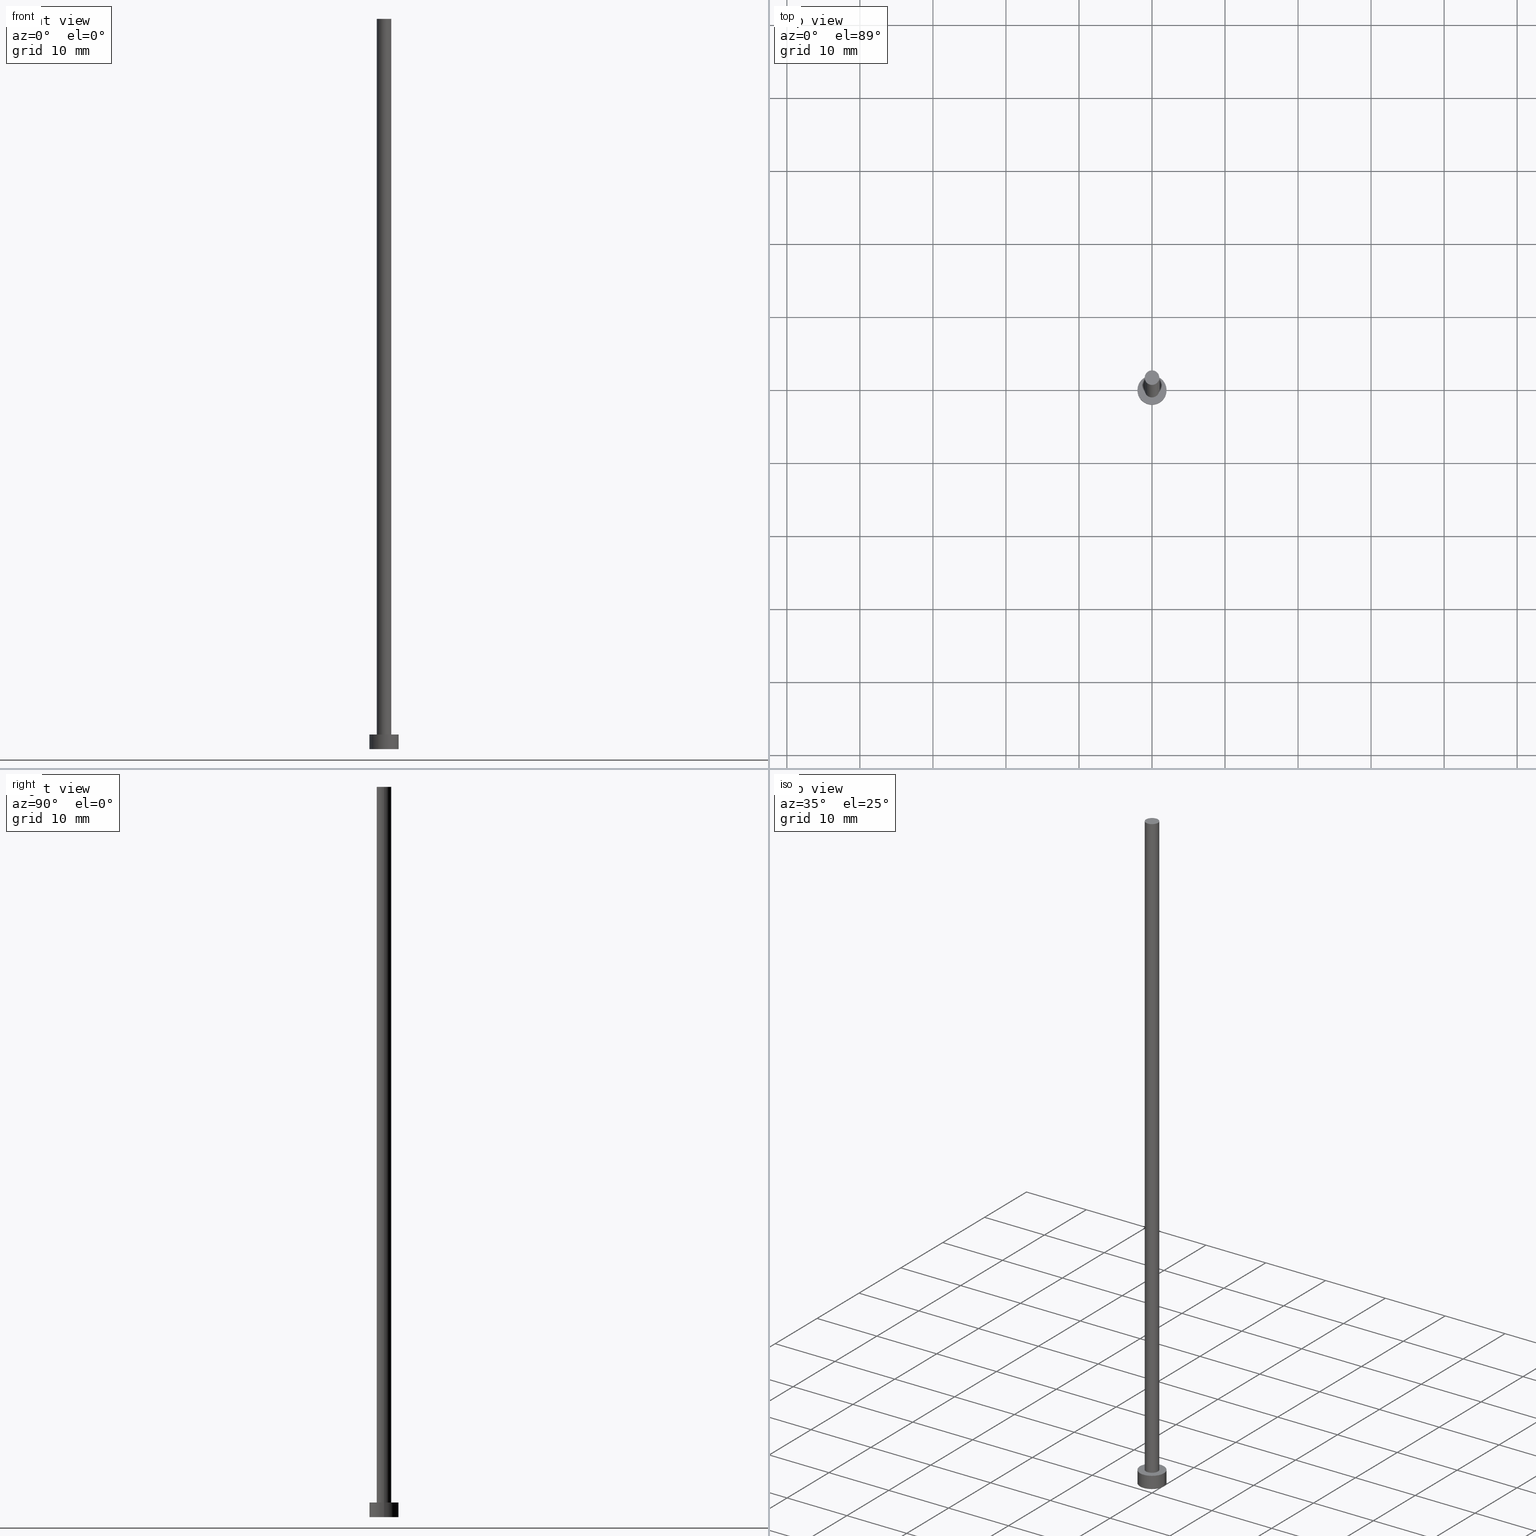
[diagram: canonical four-view strip — front | top / right | iso, engineering-drawing reading convention]
A machine part, canonical four-view strip (front | top / right | iso — engineering-drawing reading convention). The complete STEP part file that produces these views, byte-faithful:
ISO-10303-21;
HEADER;
FILE_DESCRIPTION (( 'STEP AP203' ),
    '1' );
FILE_NAME ('67bd.STEP',
    '2023-02-13T17:15:06',
    ( '' ),
    ( '' ),
    'SwSTEP 2.0',
    'SolidWorks 2019',
    '' );
FILE_SCHEMA (( 'CONFIG_CONTROL_DESIGN' ));
ENDSEC;

DATA;
#1 = DIRECTION ( 'NONE',  ( 0.000000000000000000, 0.000000000000000000, 1.000000000000000000 ) ) ;
#2 = DIRECTION ( 'NONE',  ( 0.000000000000000000, 0.000000000000000000, 1.000000000000000000 ) ) ;
#3 = EDGE_LOOP ( 'NONE', ( #61, #138 ) ) ;
#4 = CYLINDRICAL_SURFACE ( 'NONE', #77, 1.000000000000000000 ) ;
#5 = CALENDAR_DATE ( 2023, 13, 2 ) ;
#6 = DIRECTION ( 'NONE',  ( 1.000000000000000000, 0.000000000000000000, 0.000000000000000000 ) ) ;
#7 = CARTESIAN_POINT ( 'NONE',  ( 0.000000000000000000, 0.000000000000000000, 100.0000000000000000 ) ) ;
#8 = EDGE_LOOP ( 'NONE', ( #84, #35 ) ) ;
#9 = PERSON_AND_ORGANIZATION ( #157, #82 ) ;
#10 = DATE_TIME_ROLE ( 'classification_date' ) ;
#11 = DIRECTION ( 'NONE',  ( 1.000000000000000000, 0.000000000000000000, 0.000000000000000000 ) ) ;
#12 = ORIENTED_EDGE ( 'NONE', *, *, #196, .T. ) ;
#13 = DIRECTION ( 'NONE',  ( -0.000000000000000000, -0.000000000000000000, -1.000000000000000000 ) ) ;
#14 = CARTESIAN_POINT ( 'NONE',  ( 0.000000000000000000, 0.000000000000000000, 0.000000000000000000 ) ) ;
#15 = ADVANCED_FACE ( 'NONE', ( #41 ), #106, .T. ) ;
#16 = AXIS2_PLACEMENT_3D ( 'NONE', #99, #93, #240 ) ;
#17 = ORIENTED_EDGE ( 'NONE', *, *, #177, .F. ) ;
#18 = CC_DESIGN_DATE_AND_TIME_ASSIGNMENT ( #76, #10, ( #249 ) ) ;
#19 = ADVANCED_BREP_SHAPE_REPRESENTATION ( '67bd', ( #133, #89 ), #174 ) ;
#20 = PERSON_AND_ORGANIZATION_ROLE ( 'design_owner' ) ;
#21 = UNCERTAINTY_MEASURE_WITH_UNIT (LENGTH_MEASURE( 1.000000000000000082E-05 ), #197, 'distance_accuracy_value', 'NONE');
#22 = AXIS2_PLACEMENT_3D ( 'NONE', #63, #66, #108 ) ;
#23 = CARTESIAN_POINT ( 'NONE',  ( 0.000000000000000000, 0.000000000000000000, 2.000000000000000000 ) ) ;
#24 = CALENDAR_DATE ( 2023, 13, 2 ) ;
#25 = DIRECTION ( 'NONE',  ( 1.000000000000000000, 0.000000000000000000, 0.000000000000000000 ) ) ;
#26 = ORIENTED_EDGE ( 'NONE', *, *, #234, .F. ) ;
#27 = APPROVAL_PERSON_ORGANIZATION ( #69, #58, #116 ) ;
#28 = DATE_AND_TIME ( #45, #100 ) ;
#29 = FACE_OUTER_BOUND ( 'NONE', #206, .T. ) ;
#30 = CARTESIAN_POINT ( 'NONE',  ( -1.000000000000000000, 0.000000000000000000, 2.000000000000000000 ) ) ;
#31 = PERSON_AND_ORGANIZATION ( #157, #82 ) ;
#32 = LINE ( 'NONE', #188, #250 ) ;
#33 = DIRECTION ( 'NONE',  ( -0.000000000000000000, -0.000000000000000000, -1.000000000000000000 ) ) ;
#34 = VERTEX_POINT ( 'NONE', #94 ) ;
#35 = ORIENTED_EDGE ( 'NONE', *, *, #151, .T. ) ;
#36 = VERTEX_POINT ( 'NONE', #30 ) ;
#37 = CC_DESIGN_PERSON_AND_ORGANIZATION_ASSIGNMENT ( #194, #20, ( #201 ) ) ;
#38 = CIRCLE ( 'NONE', #124, 1.000000000000000000 ) ;
#39 = DIRECTION ( 'NONE',  ( 0.000000000000000000, 0.000000000000000000, 1.000000000000000000 ) ) ;
#40 = DIRECTION ( 'NONE',  ( -1.000000000000000000, 0.000000000000000000, 0.000000000000000000 ) ) ;
#41 = FACE_OUTER_BOUND ( 'NONE', #145, .T. ) ;
#42 = ORIENTED_EDGE ( 'NONE', *, *, #170, .T. ) ;
#43 = DIRECTION ( 'NONE',  ( -0.000000000000000000, -0.000000000000000000, -1.000000000000000000 ) ) ;
#44 = CARTESIAN_POINT ( 'NONE',  ( 1.000000000000000000, 1.224646799147353207E-16, 100.0000000000000000 ) ) ;
#45 = CALENDAR_DATE ( 2023, 13, 2 ) ;
#46 = CARTESIAN_POINT ( 'NONE',  ( 0.000000000000000000, 0.000000000000000000, 2.000000000000000000 ) ) ;
#47 = EDGE_CURVE ( 'NONE', #215, #166, #227, .T. ) ;
#48 = ORIENTED_EDGE ( 'NONE', *, *, #60, .T. ) ;
#49 = LINE ( 'NONE', #134, #67 ) ;
#50 = EDGE_LOOP ( 'NONE', ( #198, #221, #12, #122 ) ) ;
#51 = FACE_OUTER_BOUND ( 'NONE', #8, .T. ) ;
#52 = ADVANCED_FACE ( 'NONE', ( #243 ), #190, .T. ) ;
#53 = PERSON_AND_ORGANIZATION_ROLE ( 'creator' ) ;
#54 = DIRECTION ( 'NONE',  ( -0.000000000000000000, -0.000000000000000000, -1.000000000000000000 ) ) ;
#55 = CARTESIAN_POINT ( 'NONE',  ( 0.000000000000000000, 0.000000000000000000, 0.000000000000000000 ) ) ;
#56 = DIRECTION ( 'NONE',  ( 0.000000000000000000, 0.000000000000000000, 1.000000000000000000 ) ) ;
#57 = COORDINATED_UNIVERSAL_TIME_OFFSET ( 1, 0, .AHEAD. ) ;
#58 = APPROVAL ( #126, 'NEUR�EN�' ) ;
#59 = ORIENTED_EDGE ( 'NONE', *, *, #115, .T. ) ;
#60 = EDGE_CURVE ( 'NONE', #225, #210, #183, .T. ) ;
#61 = ORIENTED_EDGE ( 'NONE', *, *, #137, .F. ) ;
#62 = CLOSED_SHELL ( 'NONE', ( #52, #15, #214, #222, #209, #105, #64 ) ) ;
#63 = CARTESIAN_POINT ( 'NONE',  ( 0.000000000000000000, 0.000000000000000000, 2.000000000000000000 ) ) ;
#64 = ADVANCED_FACE ( 'NONE', ( #51 ), #147, .T. ) ;
#65 = CARTESIAN_POINT ( 'NONE',  ( 0.000000000000000000, 0.000000000000000000, 0.000000000000000000 ) ) ;
#66 = DIRECTION ( 'NONE',  ( 0.000000000000000000, 0.000000000000000000, 1.000000000000000000 ) ) ;
#67 = VECTOR ( 'NONE', #184, 1000.000000000000000 ) ;
#68 = VECTOR ( 'NONE', #75, 1000.000000000000000 ) ;
#69 = PERSON_AND_ORGANIZATION ( #157, #82 ) ;
#70 = CARTESIAN_POINT ( 'NONE',  ( 0.000000000000000000, 0.000000000000000000, 100.0000000000000000 ) ) ;
#71 = CARTESIAN_POINT ( 'NONE',  ( 2.000000000000000000, 2.449293598294706414E-16, 0.000000000000000000 ) ) ;
#72 = COORDINATED_UNIVERSAL_TIME_OFFSET ( 1, 0, .AHEAD. ) ;
#73 = EDGE_LOOP ( 'NONE', ( #146, #144, #245, #217 ) ) ;
#74 = DIRECTION ( 'NONE',  ( -1.000000000000000000, 0.000000000000000000, 0.000000000000000000 ) ) ;
#75 = DIRECTION ( 'NONE',  ( -0.000000000000000000, -0.000000000000000000, -1.000000000000000000 ) ) ;
#76 = DATE_AND_TIME ( #187, #142 ) ;
#77 = AXIS2_PLACEMENT_3D ( 'NONE', #153, #54, #136 ) ;
#78 = LOCAL_TIME ( 18, 15, 6.000000000000000000, #72 ) ;
#79 = MECHANICAL_CONTEXT ( 'NONE', #169, 'mechanical' ) ;
#80 = DIRECTION ( 'NONE',  ( 1.000000000000000000, 0.000000000000000000, -0.000000000000000000 ) ) ;
#81 = APPLICATION_CONTEXT ( 'configuration controlled 3d designs of mechanical parts and assemblies' ) ;
#82 = ORGANIZATION ( 'NEUR�EN�', 'NEUR�EN�', '' ) ;
#83 = DESIGN_CONTEXT ( 'detailed design', #81, 'design' ) ;
#84 = ORIENTED_EDGE ( 'NONE', *, *, #255, .T. ) ;
#85 = FACE_BOUND ( 'NONE', #3, .T. ) ;
#86 = LINE ( 'NONE', #159, #229 ) ;
#87 = DIRECTION ( 'NONE',  ( 1.000000000000000000, 0.000000000000000000, 0.000000000000000000 ) ) ;
#88 = EDGE_LOOP ( 'NONE', ( #26, #179, #59, #90 ) ) ;
#89 = AXIS2_PLACEMENT_3D ( 'NONE', #65, #251, #87 ) ;
#90 = ORIENTED_EDGE ( 'NONE', *, *, #177, .T. ) ;
#91 = DIRECTION ( 'NONE',  ( 1.000000000000000000, 0.000000000000000000, -0.000000000000000000 ) ) ;
#92 = SHAPE_DEFINITION_REPRESENTATION ( #162, #19 ) ;
#93 = DIRECTION ( 'NONE',  ( 0.000000000000000000, 0.000000000000000000, 1.000000000000000000 ) ) ;
#94 = CARTESIAN_POINT ( 'NONE',  ( -1.000000000000000000, 0.000000000000000000, 100.0000000000000000 ) ) ;
#95 = LOCAL_TIME ( 18, 15, 6.000000000000000000, #57 ) ;
#96 = PRODUCT_RELATED_PRODUCT_CATEGORY ( 'detail', '', ( #201 ) ) ;
#97 = AXIS2_PLACEMENT_3D ( 'NONE', #7, #13, #74 ) ;
#98 = PERSON_AND_ORGANIZATION ( #157, #82 ) ;
#99 = CARTESIAN_POINT ( 'NONE',  ( 0.000000000000000000, 0.000000000000000000, 2.000000000000000000 ) ) ;
#100 = LOCAL_TIME ( 18, 15, 6.000000000000000000, #242 ) ;
#101 = APPLICATION_PROTOCOL_DEFINITION ( 'international standard', 'config_control_design', 1994, #81 ) ;
#102 = CC_DESIGN_DATE_AND_TIME_ASSIGNMENT ( #28, #118, ( #199 ) ) ;
#103 = CC_DESIGN_PERSON_AND_ORGANIZATION_ASSIGNMENT ( #135, #181, ( #141 ) ) ;
#104 = AXIS2_PLACEMENT_3D ( 'NONE', #107, #1, #80 ) ;
#105 = ADVANCED_FACE ( 'NONE', ( #121 ), #4, .T. ) ;
#106 = CYLINDRICAL_SURFACE ( 'NONE', #200, 2.000000000000000000 ) ;
#107 = CARTESIAN_POINT ( 'NONE',  ( 0.000000000000000000, 0.000000000000000000, 2.000000000000000000 ) ) ;
#108 = DIRECTION ( 'NONE',  ( 1.000000000000000000, 0.000000000000000000, 0.000000000000000000 ) ) ;
#109 = DIRECTION ( 'NONE',  ( -0.000000000000000000, -0.000000000000000000, -1.000000000000000000 ) ) ;
#110 = DATE_AND_TIME ( #24, #95 ) ;
#111 = APPROVAL_PERSON_ORGANIZATION ( #98, #212, #152 ) ;
#112 = APPROVAL_DATE_TIME ( #185, #58 ) ;
#113 = CARTESIAN_POINT ( 'NONE',  ( 0.000000000000000000, 0.000000000000000000, 2.000000000000000000 ) ) ;
#114 = CIRCLE ( 'NONE', #16, 2.000000000000000000 ) ;
#115 = EDGE_CURVE ( 'NONE', #225, #248, #32, .T. ) ;
#116 = APPROVAL_ROLE ( '' ) ;
#117 = DIRECTION ( 'NONE',  ( 0.000000000000000000, 0.000000000000000000, 1.000000000000000000 ) ) ;
#118 = DATE_TIME_ROLE ( 'creation_date' ) ;
#119 = LOCAL_TIME ( 18, 15, 6.000000000000000000, #167 ) ;
#120 = PERSON_AND_ORGANIZATION_ROLE ( 'classification_officer' ) ;
#121 = FACE_OUTER_BOUND ( 'NONE', #50, .T. ) ;
#122 = ORIENTED_EDGE ( 'NONE', *, *, #137, .T. ) ;
#123 = APPROVAL ( #132, 'NEUR�EN�' ) ;
#124 = AXIS2_PLACEMENT_3D ( 'NONE', #202, #39, #25 ) ;
#125 = ORIENTED_EDGE ( 'NONE', *, *, #170, .F. ) ;
#126 = APPROVAL_STATUS ( 'not_yet_approved' ) ;
#127 = CARTESIAN_POINT ( 'NONE',  ( 0.000000000000000000, 0.000000000000000000, 100.0000000000000000 ) ) ;
#128 = DIRECTION ( 'NONE',  ( -0.000000000000000000, -0.000000000000000000, -1.000000000000000000 ) ) ;
#129 = CARTESIAN_POINT ( 'NONE',  ( 1.000000000000000000, 1.224646799147353207E-16, 2.000000000000000000 ) ) ;
#130 = CC_DESIGN_PERSON_AND_ORGANIZATION_ASSIGNMENT ( #31, #120, ( #249 ) ) ;
#131 = CC_DESIGN_PERSON_AND_ORGANIZATION_ASSIGNMENT ( #226, #205, ( #199 ) ) ;
#132 = APPROVAL_STATUS ( 'not_yet_approved' ) ;
#133 = MANIFOLD_SOLID_BREP ( 'P�idat vysunut�m3', #62 ) ;
#134 = CARTESIAN_POINT ( 'NONE',  ( -1.000000000000000000, 0.000000000000000000, 100.0000000000000000 ) ) ;
#135 = PERSON_AND_ORGANIZATION ( #157, #82 ) ;
#136 = DIRECTION ( 'NONE',  ( -1.000000000000000000, 0.000000000000000000, 0.000000000000000000 ) ) ;
#137 = EDGE_CURVE ( 'NONE', #36, #166, #155, .T. ) ;
#138 = ORIENTED_EDGE ( 'NONE', *, *, #253, .F. ) ;
#139 = ORIENTED_EDGE ( 'NONE', *, *, #140, .T. ) ;
#140 = EDGE_CURVE ( 'NONE', #210, #225, #114, .T. ) ;
#141 = PRODUCT_DEFINITION_FORMATION_WITH_SPECIFIED_SOURCE ( 'LIBOVOLN�', '', #201, .NOT_KNOWN. ) ;
#142 = LOCAL_TIME ( 18, 15, 6.000000000000000000, #203 ) ;
#143 = ORIENTED_EDGE ( 'NONE', *, *, #115, .F. ) ;
#144 = ORIENTED_EDGE ( 'NONE', *, *, #47, .T. ) ;
#145 = EDGE_LOOP ( 'NONE', ( #235, #233, #42, #143 ) ) ;
#146 = ORIENTED_EDGE ( 'NONE', *, *, #151, .F. ) ;
#147 = PLANE ( 'NONE',  #189 ) ;
#148 = DIRECTION ( 'NONE',  ( 1.000000000000000000, 0.000000000000000000, 0.000000000000000000 ) ) ;
#149 = CC_DESIGN_APPROVAL ( #58, ( #141 ) ) ;
#150 = CARTESIAN_POINT ( 'NONE',  ( 0.000000000000000000, 0.000000000000000000, 2.000000000000000000 ) ) ;
#151 = EDGE_CURVE ( 'NONE', #215, #34, #247, .T. ) ;
#152 = APPROVAL_ROLE ( '' ) ;
#153 = CARTESIAN_POINT ( 'NONE',  ( 0.000000000000000000, 0.000000000000000000, 100.0000000000000000 ) ) ;
#154 = CC_DESIGN_APPROVAL ( #212, ( #249 ) ) ;
#155 = CIRCLE ( 'NONE', #211, 1.000000000000000000 ) ;
#156 = AXIS2_PLACEMENT_3D ( 'NONE', #150, #56, #224 ) ;
#157 = PERSON ( 'NEUR�EN�', 'NEUR�EN�', 'NEUR�EN�', ('NEUR�EN�'), ('NEUR�EN�'), ('NEUR�EN�') ) ;
#158 = CARTESIAN_POINT ( 'NONE',  ( -2.000000000000000000, 0.000000000000000000, 2.000000000000000000 ) ) ;
#159 = CARTESIAN_POINT ( 'NONE',  ( 2.000000000000000000, 2.449293598294706414E-16, 2.000000000000000000 ) ) ;
#160 = EDGE_LOOP ( 'NONE', ( #48, #139 ) ) ;
#161 = APPLICATION_PROTOCOL_DEFINITION ( 'international standard', 'config_control_design', 1994, #169 ) ;
#162 = PRODUCT_DEFINITION_SHAPE ( 'NONE', 'NONE',  #199 ) ;
#163 = AXIS2_PLACEMENT_3D ( 'NONE', #14, #117, #6 ) ;
#164 = CARTESIAN_POINT ( 'NONE',  ( 2.000000000000000000, 2.449293598294706414E-16, 2.000000000000000000 ) ) ;
#165 = DIRECTION ( 'NONE',  ( -1.000000000000000000, 0.000000000000000000, 0.000000000000000000 ) ) ;
#166 = VERTEX_POINT ( 'NONE', #129 ) ;
#167 = COORDINATED_UNIVERSAL_TIME_OFFSET ( 1, 0, .AHEAD. ) ;
#168 = DATE_AND_TIME ( #5, #78 ) ;
#169 = APPLICATION_CONTEXT ( 'configuration controlled 3d designs of mechanical parts and assemblies' ) ;
#170 = EDGE_CURVE ( 'NONE', #192, #248, #204, .T. ) ;
#171 = APPROVAL_STATUS ( 'not_yet_approved' ) ;
#172 = DIRECTION ( 'NONE',  ( 0.000000000000000000, 0.000000000000000000, 1.000000000000000000 ) ) ;
#173 = CARTESIAN_POINT ( 'NONE',  ( 1.000000000000000000, 1.224646799147353207E-16, 100.0000000000000000 ) ) ;
#174 =( GEOMETRIC_REPRESENTATION_CONTEXT ( 3 ) GLOBAL_UNCERTAINTY_ASSIGNED_CONTEXT ( ( #21 ) ) GLOBAL_UNIT_ASSIGNED_CONTEXT ( ( #197, #254, #213 ) ) REPRESENTATION_CONTEXT ( 'NONE', 'WORKASPACE' ) );
#175 = AXIS2_PLACEMENT_3D ( 'NONE', #70, #172, #244 ) ;
#176 = CIRCLE ( 'NONE', #163, 2.000000000000000000 ) ;
#177 = EDGE_CURVE ( 'NONE', #248, #192, #176, .T. ) ;
#178 = AXIS2_PLACEMENT_3D ( 'NONE', #55, #2, #91 ) ;
#179 = ORIENTED_EDGE ( 'NONE', *, *, #60, .F. ) ;
#180 = APPROVAL_DATE_TIME ( #110, #212 ) ;
#181 = PERSON_AND_ORGANIZATION_ROLE ( 'design_supplier' ) ;
#182 = DIRECTION ( 'NONE',  ( 0.000000000000000000, 0.000000000000000000, 1.000000000000000000 ) ) ;
#183 = CIRCLE ( 'NONE', #156, 2.000000000000000000 ) ;
#184 = DIRECTION ( 'NONE',  ( -0.000000000000000000, -0.000000000000000000, -1.000000000000000000 ) ) ;
#185 = DATE_AND_TIME ( #239, #119 ) ;
#186 = PLANE ( 'NONE',  #178 ) ;
#187 = CALENDAR_DATE ( 2023, 13, 2 ) ;
#188 = CARTESIAN_POINT ( 'NONE',  ( -2.000000000000000000, 0.000000000000000000, 2.000000000000000000 ) ) ;
#189 = AXIS2_PLACEMENT_3D ( 'NONE', #127, #220, #237 ) ;
#190 = CYLINDRICAL_SURFACE ( 'NONE', #97, 1.000000000000000000 ) ;
#191 = CARTESIAN_POINT ( 'NONE',  ( 0.000000000000000000, 0.000000000000000000, 0.000000000000000000 ) ) ;
#192 = VERTEX_POINT ( 'NONE', #71 ) ;
#193 = AXIS2_PLACEMENT_3D ( 'NONE', #46, #128, #40 ) ;
#194 = PERSON_AND_ORGANIZATION ( #157, #82 ) ;
#195 = CARTESIAN_POINT ( 'NONE',  ( -2.000000000000000000, 0.000000000000000000, 0.000000000000000000 ) ) ;
#196 = EDGE_CURVE ( 'NONE', #34, #36, #49, .T. ) ;
#197 =( LENGTH_UNIT ( ) NAMED_UNIT ( * ) SI_UNIT ( .MILLI., .METRE. ) );
#198 = ORIENTED_EDGE ( 'NONE', *, *, #47, .F. ) ;
#199 = PRODUCT_DEFINITION ( 'NEZN�M�', '', #141, #83 ) ;
#200 = AXIS2_PLACEMENT_3D ( 'NONE', #23, #109, #165 ) ;
#201 = PRODUCT ( '67bd', '67bd', '', ( #79 ) ) ;
#202 = CARTESIAN_POINT ( 'NONE',  ( 0.000000000000000000, 0.000000000000000000, 100.0000000000000000 ) ) ;
#203 = COORDINATED_UNIVERSAL_TIME_OFFSET ( 1, 0, .AHEAD. ) ;
#204 = CIRCLE ( 'NONE', #231, 2.000000000000000000 ) ;
#205 = PERSON_AND_ORGANIZATION_ROLE ( 'creator' ) ;
#206 = EDGE_LOOP ( 'NONE', ( #17, #125 ) ) ;
#207 = SECURITY_CLASSIFICATION_LEVEL ( 'unclassified' ) ;
#208 = CC_DESIGN_APPROVAL ( #123, ( #199 ) ) ;
#209 = ADVANCED_FACE ( 'NONE', ( #29 ), #186, .F. ) ;
#210 = VERTEX_POINT ( 'NONE', #164 ) ;
#211 = AXIS2_PLACEMENT_3D ( 'NONE', #113, #182, #11 ) ;
#212 = APPROVAL ( #171, 'NEUR�EN�' ) ;
#213 =( NAMED_UNIT ( * ) SI_UNIT ( $, .STERADIAN. ) SOLID_ANGLE_UNIT ( ) );
#214 = ADVANCED_FACE ( 'NONE', ( #236 ), #219, .T. ) ;
#215 = VERTEX_POINT ( 'NONE', #44 ) ;
#216 = PLANE ( 'NONE',  #104 ) ;
#217 = ORIENTED_EDGE ( 'NONE', *, *, #196, .F. ) ;
#218 = APPROVAL_ROLE ( '' ) ;
#219 = CYLINDRICAL_SURFACE ( 'NONE', #193, 2.000000000000000000 ) ;
#220 = DIRECTION ( 'NONE',  ( 0.000000000000000000, 0.000000000000000000, 1.000000000000000000 ) ) ;
#221 = ORIENTED_EDGE ( 'NONE', *, *, #255, .F. ) ;
#222 = ADVANCED_FACE ( 'NONE', ( #85, #232 ), #216, .T. ) ;
#223 = APPROVAL_DATE_TIME ( #168, #123 ) ;
#224 = DIRECTION ( 'NONE',  ( 1.000000000000000000, 0.000000000000000000, 0.000000000000000000 ) ) ;
#225 = VERTEX_POINT ( 'NONE', #158 ) ;
#226 = PERSON_AND_ORGANIZATION ( #157, #82 ) ;
#227 = LINE ( 'NONE', #173, #68 ) ;
#228 = DIRECTION ( 'NONE',  ( 0.000000000000000000, 0.000000000000000000, 1.000000000000000000 ) ) ;
#229 = VECTOR ( 'NONE', #43, 1000.000000000000000 ) ;
#230 = CC_DESIGN_SECURITY_CLASSIFICATION ( #249, ( #141 ) ) ;
#231 = AXIS2_PLACEMENT_3D ( 'NONE', #191, #228, #148 ) ;
#232 = FACE_OUTER_BOUND ( 'NONE', #160, .T. ) ;
#233 = ORIENTED_EDGE ( 'NONE', *, *, #234, .T. ) ;
#234 = EDGE_CURVE ( 'NONE', #210, #192, #86, .T. ) ;
#235 = ORIENTED_EDGE ( 'NONE', *, *, #140, .F. ) ;
#236 = FACE_OUTER_BOUND ( 'NONE', #88, .T. ) ;
#237 = DIRECTION ( 'NONE',  ( 1.000000000000000000, 0.000000000000000000, -0.000000000000000000 ) ) ;
#238 = CC_DESIGN_PERSON_AND_ORGANIZATION_ASSIGNMENT ( #9, #53, ( #141 ) ) ;
#239 = CALENDAR_DATE ( 2023, 13, 2 ) ;
#240 = DIRECTION ( 'NONE',  ( 1.000000000000000000, 0.000000000000000000, 0.000000000000000000 ) ) ;
#241 = CIRCLE ( 'NONE', #22, 1.000000000000000000 ) ;
#242 = COORDINATED_UNIVERSAL_TIME_OFFSET ( 1, 0, .AHEAD. ) ;
#243 = FACE_OUTER_BOUND ( 'NONE', #73, .T. ) ;
#244 = DIRECTION ( 'NONE',  ( 1.000000000000000000, 0.000000000000000000, 0.000000000000000000 ) ) ;
#245 = ORIENTED_EDGE ( 'NONE', *, *, #253, .T. ) ;
#246 = APPROVAL_PERSON_ORGANIZATION ( #252, #123, #218 ) ;
#247 = CIRCLE ( 'NONE', #175, 1.000000000000000000 ) ;
#248 = VERTEX_POINT ( 'NONE', #195 ) ;
#249 = SECURITY_CLASSIFICATION ( '', '', #207 ) ;
#250 = VECTOR ( 'NONE', #33, 1000.000000000000000 ) ;
#251 = DIRECTION ( 'NONE',  ( 0.000000000000000000, 0.000000000000000000, 1.000000000000000000 ) ) ;
#252 = PERSON_AND_ORGANIZATION ( #157, #82 ) ;
#253 = EDGE_CURVE ( 'NONE', #166, #36, #241, .T. ) ;
#254 =( NAMED_UNIT ( * ) PLANE_ANGLE_UNIT ( ) SI_UNIT ( $, .RADIAN. ) );
#255 = EDGE_CURVE ( 'NONE', #34, #215, #38, .T. ) ;
ENDSEC;
END-ISO-10303-21;
